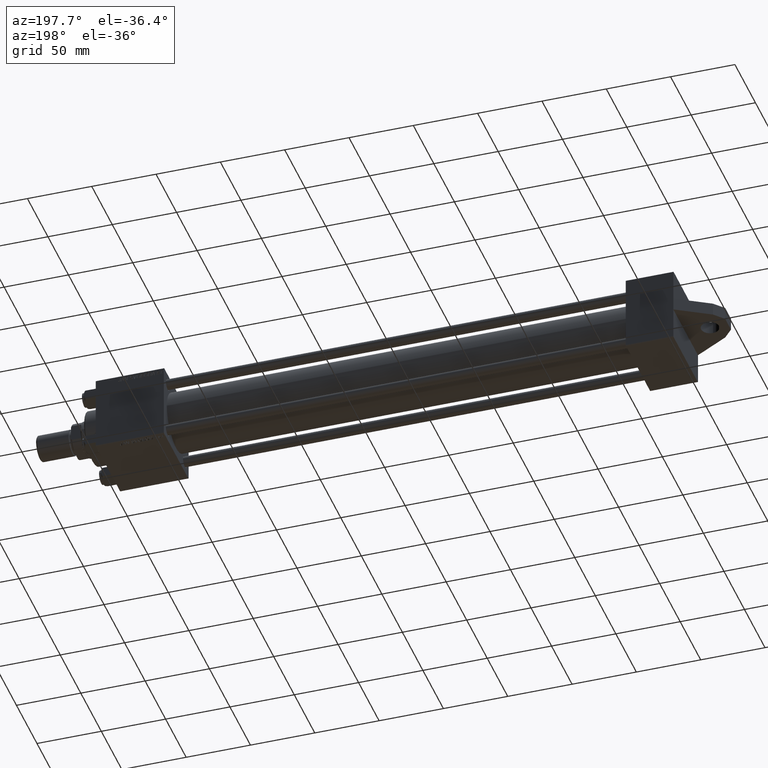
[diagram: clean part render]
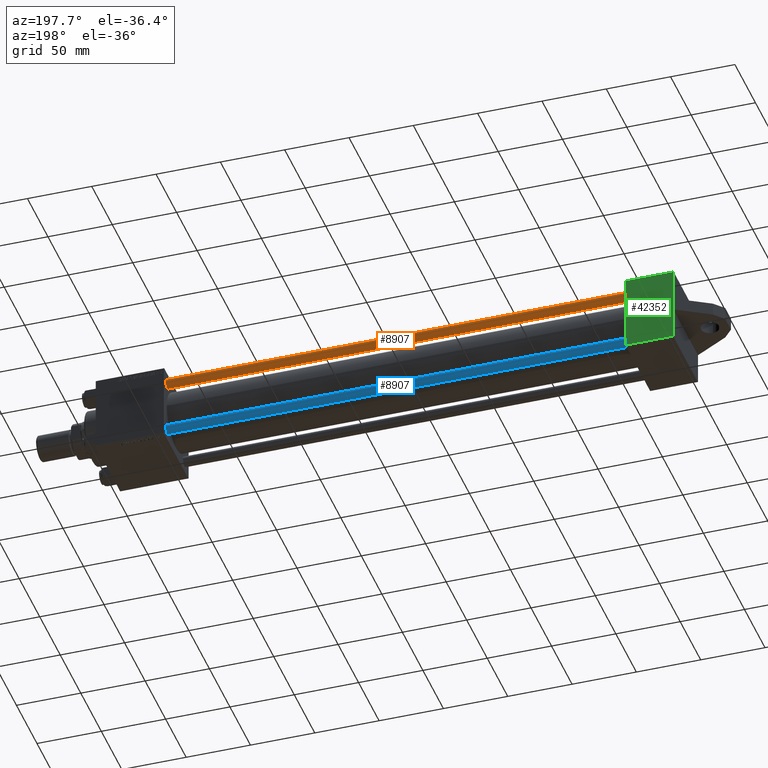
[diagram: same view with three faces highlighted in distinct colors, each labeled with its STEP entity id]
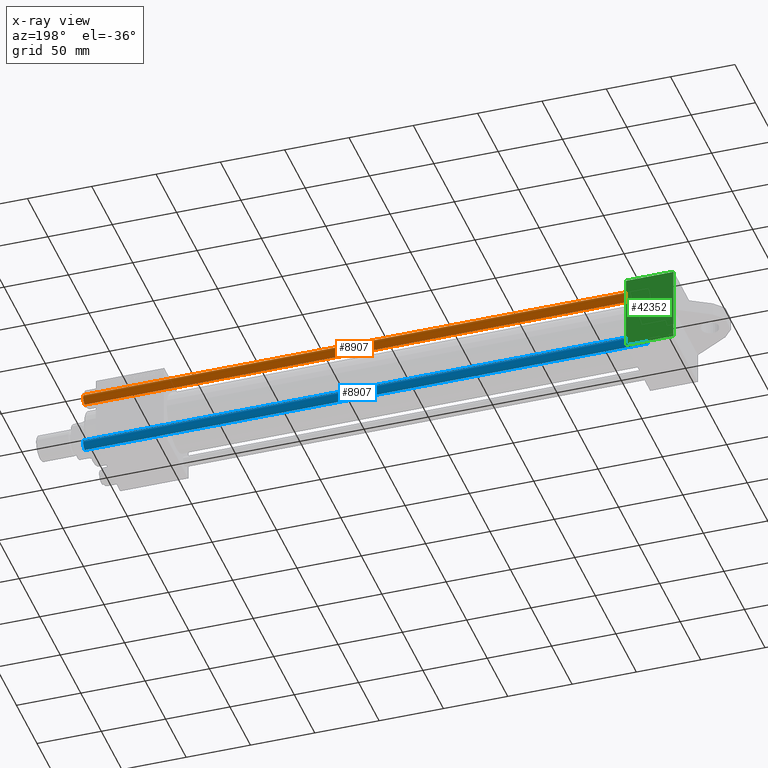
[diagram: x-ray of the same camera — body ghosted, the three highlighted faces saturated]
A machine part, auxiliary view with three faces highlighted in distinct colors.
The next image is the same camera in x-ray (body ghosted, the three faces saturated) — at least one of them is partly hidden behind the body in this view.
Their STEP definitions:

[orange] entity #8907 — the highlighted cylindrical surface (edge-blend (fillet) strip) has radius 4 mm, axis along (-1, 0, -0).
#483 = VERTEX_POINT ( 'NONE', #8620 ) ;
#1907 = EDGE_LOOP ( 'NONE', ( #25373, #39843, #9185, #43938 ) ) ;
#2585 = CARTESIAN_POINT ( 'NONE',  ( 0.000000000000000000, 0.000000000000000000, 0.5000000000000004441 ) ) ;
#2723 = CARTESIAN_POINT ( 'NONE',  ( -4.000000000000000000, 0.000000000000000000, 439.0000000000000000 ) ) ;
#4278 = DIRECTION ( 'NONE',  ( -0.000000000000000000, -0.000000000000000000, -1.000000000000000000 ) ) ;
#4512 = LINE ( 'NONE', #29447, #32148 ) ;
#5238 = VERTEX_POINT ( 'NONE', #30989 ) ;
#5515 = EDGE_CURVE ( 'NONE', #29386, #45938, #30732, .T. ) ;
#6395 = DIRECTION ( 'NONE',  ( 1.000000000000000000, 0.000000000000000000, 0.000000000000000000 ) ) ;
#8620 = CARTESIAN_POINT ( 'NONE',  ( 4.000000000000000000, 4.898587196589412829E-16, 438.5000000000000000 ) ) ;
#8907 = ADVANCED_FACE ( 'NONE', ( #32590 ), #35893, .T. ) ;
#9185 = ORIENTED_EDGE ( 'NONE', *, *, #25043, .T. ) ;
#10118 = DIRECTION ( 'NONE',  ( 1.000000000000000000, 0.000000000000000000, 0.000000000000000000 ) ) ;
#10282 = DIRECTION ( 'NONE',  ( -1.000000000000000000, 0.000000000000000000, 0.000000000000000000 ) ) ;
#10511 = DIRECTION ( 'NONE',  ( -0.000000000000000000, -0.000000000000000000, -1.000000000000000000 ) ) ;
#12510 = AXIS2_PLACEMENT_3D ( 'NONE', #39189, #10511, #10282 ) ;
#12966 = DIRECTION ( 'NONE',  ( -0.000000000000000000, -0.000000000000000000, 1.000000000000000000 ) ) ;
#13365 = CARTESIAN_POINT ( 'NONE',  ( -4.000000000000000000, 0.000000000000000000, 0.5000000000000004441 ) ) ;
#14466 = EDGE_CURVE ( 'NONE', #483, #5238, #4512, .T. ) ;
#16689 = AXIS2_PLACEMENT_3D ( 'NONE', #2585, #12966, #10118 ) ;
#23213 = DIRECTION ( 'NONE',  ( -0.000000000000000000, -0.000000000000000000, -1.000000000000000000 ) ) ;
#25043 = EDGE_CURVE ( 'NONE', #5238, #45938, #42955, .T. ) ;
#25373 = ORIENTED_EDGE ( 'NONE', *, *, #45430, .T. ) ;
#25838 = CARTESIAN_POINT ( 'NONE',  ( -4.000000000000000000, 0.000000000000000000, 438.5000000000000000 ) ) ;
#26342 = AXIS2_PLACEMENT_3D ( 'NONE', #38385, #38613, #6395 ) ;
#29386 = VERTEX_POINT ( 'NONE', #25838 ) ;
#29447 = CARTESIAN_POINT ( 'NONE',  ( 4.000000000000000000, 4.898587196589412829E-16, 439.0000000000000000 ) ) ;
#29766 = VECTOR ( 'NONE', #23213, 1000.000000000000000 ) ;
#30732 = LINE ( 'NONE', #2723, #29766 ) ;
#30989 = CARTESIAN_POINT ( 'NONE',  ( 4.000000000000000000, 4.898587196589412829E-16, 0.5000000000000004441 ) ) ;
#32148 = VECTOR ( 'NONE', #4278, 1000.000000000000000 ) ;
#32590 = FACE_OUTER_BOUND ( 'NONE', #1907, .T. ) ;
#35893 = CYLINDRICAL_SURFACE ( 'NONE', #12510, 4.000000000000000000 ) ;
#37623 = CIRCLE ( 'NONE', #26342, 4.000000000000000000 ) ;
#38385 = CARTESIAN_POINT ( 'NONE',  ( 0.000000000000000000, 0.000000000000000000, 438.5000000000000000 ) ) ;
#38613 = DIRECTION ( 'NONE',  ( 0.000000000000000000, 0.000000000000000000, -1.000000000000000000 ) ) ;
#39189 = CARTESIAN_POINT ( 'NONE',  ( 0.000000000000000000, 0.000000000000000000, 439.0000000000000000 ) ) ;
#39843 = ORIENTED_EDGE ( 'NONE', *, *, #14466, .T. ) ;
#42955 = CIRCLE ( 'NONE', #16689, 4.000000000000000000 ) ;
#43938 = ORIENTED_EDGE ( 'NONE', *, *, #5515, .F. ) ;
#45430 = EDGE_CURVE ( 'NONE', #29386, #483, #37623, .T. ) ;
#45938 = VERTEX_POINT ( 'NONE', #13365 ) ;

[blue] entity #8907 — the highlighted cylindrical surface (edge-blend (fillet) strip) has radius 4 mm, axis along (1, -0, -0).
#483 = VERTEX_POINT ( 'NONE', #8620 ) ;
#1907 = EDGE_LOOP ( 'NONE', ( #25373, #39843, #9185, #43938 ) ) ;
#2585 = CARTESIAN_POINT ( 'NONE',  ( 0.000000000000000000, 0.000000000000000000, 0.5000000000000004441 ) ) ;
#2723 = CARTESIAN_POINT ( 'NONE',  ( -4.000000000000000000, 0.000000000000000000, 439.0000000000000000 ) ) ;
#4278 = DIRECTION ( 'NONE',  ( -0.000000000000000000, -0.000000000000000000, -1.000000000000000000 ) ) ;
#4512 = LINE ( 'NONE', #29447, #32148 ) ;
#5238 = VERTEX_POINT ( 'NONE', #30989 ) ;
#5515 = EDGE_CURVE ( 'NONE', #29386, #45938, #30732, .T. ) ;
#6395 = DIRECTION ( 'NONE',  ( 1.000000000000000000, 0.000000000000000000, 0.000000000000000000 ) ) ;
#8620 = CARTESIAN_POINT ( 'NONE',  ( 4.000000000000000000, 4.898587196589412829E-16, 438.5000000000000000 ) ) ;
#8907 = ADVANCED_FACE ( 'NONE', ( #32590 ), #35893, .T. ) ;
#9185 = ORIENTED_EDGE ( 'NONE', *, *, #25043, .T. ) ;
#10118 = DIRECTION ( 'NONE',  ( 1.000000000000000000, 0.000000000000000000, 0.000000000000000000 ) ) ;
#10282 = DIRECTION ( 'NONE',  ( -1.000000000000000000, 0.000000000000000000, 0.000000000000000000 ) ) ;
#10511 = DIRECTION ( 'NONE',  ( -0.000000000000000000, -0.000000000000000000, -1.000000000000000000 ) ) ;
#12510 = AXIS2_PLACEMENT_3D ( 'NONE', #39189, #10511, #10282 ) ;
#12966 = DIRECTION ( 'NONE',  ( -0.000000000000000000, -0.000000000000000000, 1.000000000000000000 ) ) ;
#13365 = CARTESIAN_POINT ( 'NONE',  ( -4.000000000000000000, 0.000000000000000000, 0.5000000000000004441 ) ) ;
#14466 = EDGE_CURVE ( 'NONE', #483, #5238, #4512, .T. ) ;
#16689 = AXIS2_PLACEMENT_3D ( 'NONE', #2585, #12966, #10118 ) ;
#23213 = DIRECTION ( 'NONE',  ( -0.000000000000000000, -0.000000000000000000, -1.000000000000000000 ) ) ;
#25043 = EDGE_CURVE ( 'NONE', #5238, #45938, #42955, .T. ) ;
#25373 = ORIENTED_EDGE ( 'NONE', *, *, #45430, .T. ) ;
#25838 = CARTESIAN_POINT ( 'NONE',  ( -4.000000000000000000, 0.000000000000000000, 438.5000000000000000 ) ) ;
#26342 = AXIS2_PLACEMENT_3D ( 'NONE', #38385, #38613, #6395 ) ;
#29386 = VERTEX_POINT ( 'NONE', #25838 ) ;
#29447 = CARTESIAN_POINT ( 'NONE',  ( 4.000000000000000000, 4.898587196589412829E-16, 439.0000000000000000 ) ) ;
#29766 = VECTOR ( 'NONE', #23213, 1000.000000000000000 ) ;
#30732 = LINE ( 'NONE', #2723, #29766 ) ;
#30989 = CARTESIAN_POINT ( 'NONE',  ( 4.000000000000000000, 4.898587196589412829E-16, 0.5000000000000004441 ) ) ;
#32148 = VECTOR ( 'NONE', #4278, 1000.000000000000000 ) ;
#32590 = FACE_OUTER_BOUND ( 'NONE', #1907, .T. ) ;
#35893 = CYLINDRICAL_SURFACE ( 'NONE', #12510, 4.000000000000000000 ) ;
#37623 = CIRCLE ( 'NONE', #26342, 4.000000000000000000 ) ;
#38385 = CARTESIAN_POINT ( 'NONE',  ( 0.000000000000000000, 0.000000000000000000, 438.5000000000000000 ) ) ;
#38613 = DIRECTION ( 'NONE',  ( 0.000000000000000000, 0.000000000000000000, -1.000000000000000000 ) ) ;
#39189 = CARTESIAN_POINT ( 'NONE',  ( 0.000000000000000000, 0.000000000000000000, 439.0000000000000000 ) ) ;
#39843 = ORIENTED_EDGE ( 'NONE', *, *, #14466, .T. ) ;
#42955 = CIRCLE ( 'NONE', #16689, 4.000000000000000000 ) ;
#43938 = ORIENTED_EDGE ( 'NONE', *, *, #5515, .F. ) ;
#45430 = EDGE_CURVE ( 'NONE', #29386, #483, #37623, .T. ) ;
#45938 = VERTEX_POINT ( 'NONE', #13365 ) ;

[green] entity #42352 — the highlighted planar face has unit normal (-0, 1, 0).
#995 = VECTOR ( 'NONE', #45554, 1000.000000000000000 ) ;
#1177 = DIRECTION ( 'NONE',  ( 0.000000000000000000, -1.000000000000000000, -1.156482317317871725E-16 ) ) ;
#1349 = VECTOR ( 'NONE', #36515, 1000.000000000000000 ) ;
#4836 = EDGE_LOOP ( 'NONE', ( #29400, #8019, #22377, #41208, #10857, #42575 ) ) ;
#6127 = FACE_OUTER_BOUND ( 'NONE', #4836, .T. ) ;
#6303 = DIRECTION ( 'NONE',  ( 0.000000000000000000, 1.000000000000000000, 0.000000000000000000 ) ) ;
#8019 = ORIENTED_EDGE ( 'NONE', *, *, #28295, .T. ) ;
#8319 = CARTESIAN_POINT ( 'NONE',  ( 0.000000000000000000, 29.99999999999999289, -30.00000000000000000 ) ) ;
#9129 = LINE ( 'NONE', #36942, #995 ) ;
#10216 = VERTEX_POINT ( 'NONE', #40524 ) ;
#10857 = ORIENTED_EDGE ( 'NONE', *, *, #18074, .F. ) ;
#12200 = VECTOR ( 'NONE', #6303, 1000.000000000000000 ) ;
#12744 = EDGE_CURVE ( 'NONE', #40501, #25432, #13800, .T. ) ;
#13376 = CARTESIAN_POINT ( 'NONE',  ( 37.00000000000000000, -29.50000000000000000, -30.00000000000000711 ) ) ;
#13800 = LINE ( 'NONE', #36748, #1349 ) ;
#16232 = EDGE_CURVE ( 'NONE', #39692, #40501, #22118, .T. ) ;
#18074 = EDGE_CURVE ( 'NONE', #39375, #25432, #26133, .T. ) ;
#19317 = CARTESIAN_POINT ( 'NONE',  ( 0.000000000000000000, 29.99999999999999289, -30.00000000000000000 ) ) ;
#19956 = CARTESIAN_POINT ( 'NONE',  ( 0.000000000000000000, -29.50000000000000000, -30.00000000000000711 ) ) ;
#21884 = CARTESIAN_POINT ( 'NONE',  ( 37.00000000000000000, 29.99999999999999289, -30.00000000000000000 ) ) ;
#22118 = LINE ( 'NONE', #21884, #45045 ) ;
#22377 = ORIENTED_EDGE ( 'NONE', *, *, #16232, .T. ) ;
#22558 = EDGE_CURVE ( 'NONE', #39375, #34176, #37138, .T. ) ;
#22669 = DIRECTION ( 'NONE',  ( 0.000000000000000000, -1.000000000000000000, -1.156482317317871725E-16 ) ) ;
#23298 = VECTOR ( 'NONE', #41170, 1000.000000000000000 ) ;
#24693 = DIRECTION ( 'NONE',  ( 0.000000000000000000, 1.156482317317871725E-16, -1.000000000000000000 ) ) ;
#25432 = VERTEX_POINT ( 'NONE', #19956 ) ;
#26133 = LINE ( 'NONE', #19317, #23298 ) ;
#27955 = CARTESIAN_POINT ( 'NONE',  ( 0.000000000000000000, 5.000000000000000000, -30.00000000000000711 ) ) ;
#28295 = EDGE_CURVE ( 'NONE', #10216, #39692, #9129, .T. ) ;
#29061 = VECTOR ( 'NONE', #22669, 1000.000000000000000 ) ;
#29400 = ORIENTED_EDGE ( 'NONE', *, *, #39718, .F. ) ;
#30778 = CARTESIAN_POINT ( 'NONE',  ( 0.000000000000000000, -5.000000000000000000, -30.00000000000000711 ) ) ;
#31517 = DIRECTION ( 'NONE',  ( 0.000000000000000000, 1.000000000000000000, 1.156482317317871725E-16 ) ) ;
#34176 = VERTEX_POINT ( 'NONE', #27955 ) ;
#35941 = AXIS2_PLACEMENT_3D ( 'NONE', #38117, #24693, #31517 ) ;
#36515 = DIRECTION ( 'NONE',  ( -1.000000000000000000, 0.000000000000000000, 0.000000000000000000 ) ) ;
#36748 = CARTESIAN_POINT ( 'NONE',  ( 0.000000000000000000, -29.50000000000001066, -30.00000000000000711 ) ) ;
#36942 = CARTESIAN_POINT ( 'NONE',  ( 37.00000000000000000, 29.49999999999997868, -30.00000000000000000 ) ) ;
#37138 = LINE ( 'NONE', #30778, #12200 ) ;
#38117 = CARTESIAN_POINT ( 'NONE',  ( 37.00000000000000000, 29.99999999999999289, -30.00000000000000000 ) ) ;
#39375 = VERTEX_POINT ( 'NONE', #45043 ) ;
#39692 = VERTEX_POINT ( 'NONE', #43596 ) ;
#39718 = EDGE_CURVE ( 'NONE', #10216, #34176, #40299, .T. ) ;
#40299 = LINE ( 'NONE', #8319, #29061 ) ;
#40501 = VERTEX_POINT ( 'NONE', #13376 ) ;
#40524 = CARTESIAN_POINT ( 'NONE',  ( 0.000000000000000000, 29.49999999999997868, -30.00000000000000000 ) ) ;
#41170 = DIRECTION ( 'NONE',  ( 0.000000000000000000, -1.000000000000000000, -1.156482317317871725E-16 ) ) ;
#41208 = ORIENTED_EDGE ( 'NONE', *, *, #12744, .T. ) ;
#42352 = ADVANCED_FACE ( 'NONE', ( #6127 ), #45164, .T. ) ;
#42575 = ORIENTED_EDGE ( 'NONE', *, *, #22558, .T. ) ;
#43596 = CARTESIAN_POINT ( 'NONE',  ( 37.00000000000000000, 29.49999999999997868, -30.00000000000000000 ) ) ;
#45043 = CARTESIAN_POINT ( 'NONE',  ( 0.000000000000000000, -4.999999999999984013, -30.00000000000000355 ) ) ;
#45045 = VECTOR ( 'NONE', #1177, 1000.000000000000000 ) ;
#45164 = PLANE ( 'NONE',  #35941 ) ;
#45554 = DIRECTION ( 'NONE',  ( 1.000000000000000000, 0.000000000000000000, 0.000000000000000000 ) ) ;